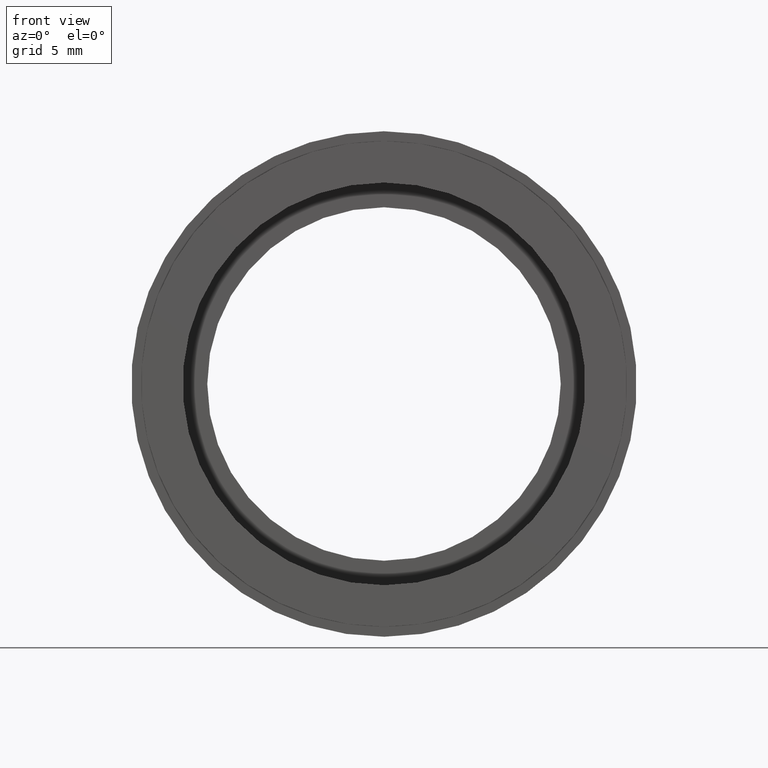
[diagram: clean part render]
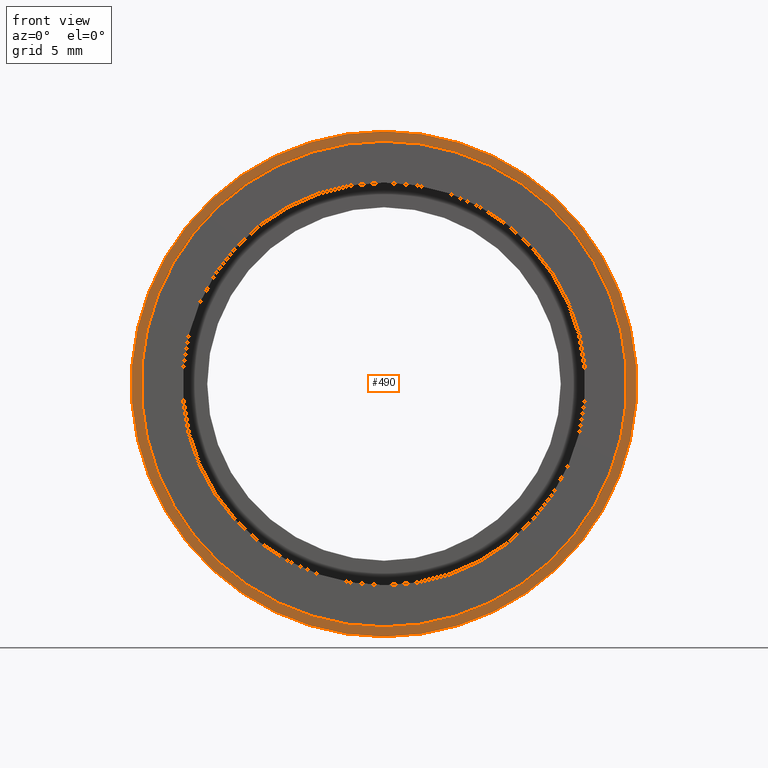
[diagram: same view with one face highlighted and labeled with its STEP entity id]
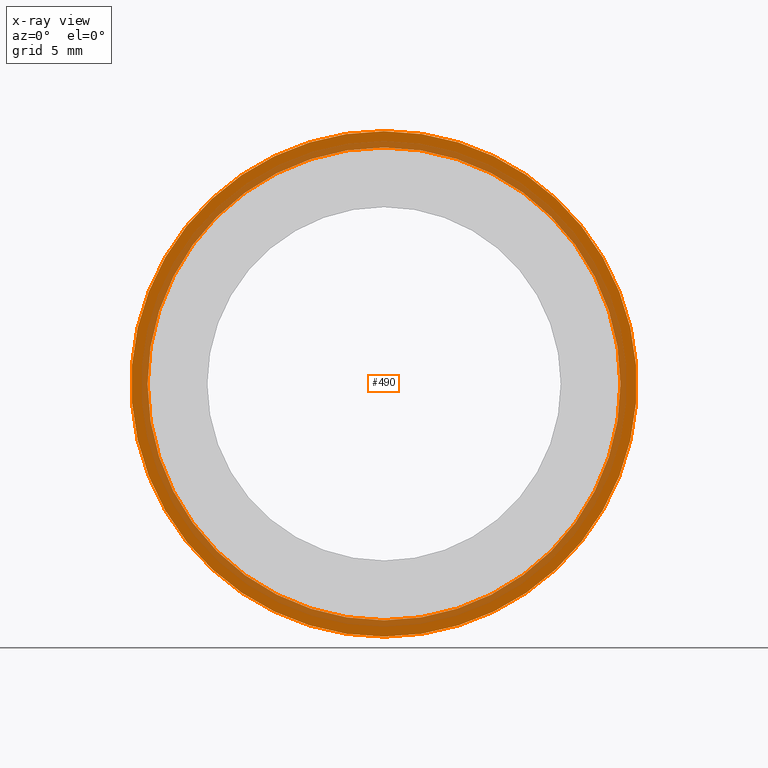
[diagram: x-ray of the same camera — body ghosted, the highlighted face saturated]
A machine part, front view. The second image highlights one B-rep face of the part: STEP entity #490.
The next image is the same camera in x-ray: the body ghosted, the highlighted face saturated — about 38% of this face is hidden behind the body in this view.
In plain terms, the highlighted planar face has unit normal (-0, 1, 0).
Its self-contained STEP definition (entity closure, byte-faithful):
#5 = CARTESIAN_POINT ( 'NONE',  ( 0.0000000000000000000, 5.000000000000000900, 15.87500000000000000 ) ) ;
#14 = CARTESIAN_POINT ( 'NONE',  ( 0.0000000000000000000, 5.000000000000000900, 0.0000000000000000000 ) ) ;
#20 = AXIS2_PLACEMENT_3D ( 'NONE', #531, #187, #331 ) ;
#21 = CARTESIAN_POINT ( 'NONE',  ( 0.0000000000000000000, 5.000000000000000900, 0.0000000000000000000 ) ) ;
#30 = EDGE_CURVE ( 'NONE', #263, #418, #401, .T. ) ;
#50 = VERTEX_POINT ( 'NONE', #5 ) ;
#79 = AXIS2_PLACEMENT_3D ( 'NONE', #14, #394, #178 ) ;
#95 = EDGE_CURVE ( 'NONE', #418, #263, #127, .T. ) ;
#115 = FACE_BOUND ( 'NONE', #275, .T. ) ;
#127 = CIRCLE ( 'NONE', #79, 14.85000000000000100 ) ;
#178 = DIRECTION ( 'NONE',  ( 0.0000000000000000000, 0.0000000000000000000, 1.000000000000000000 ) ) ;
#184 = AXIS2_PLACEMENT_3D ( 'NONE', #21, #458, #353 ) ;
#187 = DIRECTION ( 'NONE',  ( -0.0000000000000000000, 1.000000000000000000, -0.0000000000000000000 ) ) ;
#203 = EDGE_CURVE ( 'NONE', #214, #50, #390, .T. ) ;
#211 = ORIENTED_EDGE ( 'NONE', *, *, #30, .T. ) ;
#214 = VERTEX_POINT ( 'NONE', #310 ) ;
#241 = CARTESIAN_POINT ( 'NONE',  ( 1.818600496733819900E-015, 5.000000000000000900, -14.85000000000000100 ) ) ;
#262 = ORIENTED_EDGE ( 'NONE', *, *, #203, .F. ) ;
#263 = VERTEX_POINT ( 'NONE', #399 ) ;
#273 = PLANE ( 'NONE',  #309 ) ;
#275 = EDGE_LOOP ( 'NONE', ( #211, #559 ) ) ;
#309 = AXIS2_PLACEMENT_3D ( 'NONE', #375, #591, #324 ) ;
#310 = CARTESIAN_POINT ( 'NONE',  ( 1.944126793646423200E-015, 5.000000000000000900, -15.87500000000000000 ) ) ;
#322 = EDGE_CURVE ( 'NONE', #50, #214, #481, .T. ) ;
#324 = DIRECTION ( 'NONE',  ( 0.0000000000000000000, 0.0000000000000000000, 1.000000000000000000 ) ) ;
#331 = DIRECTION ( 'NONE',  ( 0.0000000000000000000, 0.0000000000000000000, 1.000000000000000000 ) ) ;
#353 = DIRECTION ( 'NONE',  ( 0.0000000000000000000, 0.0000000000000000000, 1.000000000000000000 ) ) ;
#375 = CARTESIAN_POINT ( 'NONE',  ( 15.87500000000000000, 5.000000000000000000, 0.0000000000000000000 ) ) ;
#386 = FACE_OUTER_BOUND ( 'NONE', #409, .T. ) ;
#390 = CIRCLE ( 'NONE', #184, 15.87500000000000000 ) ;
#394 = DIRECTION ( 'NONE',  ( -0.0000000000000000000, 1.000000000000000000, -0.0000000000000000000 ) ) ;
#399 = CARTESIAN_POINT ( 'NONE',  ( 0.0000000000000000000, 5.000000000000000900, 14.85000000000000100 ) ) ;
#401 = CIRCLE ( 'NONE', #412, 14.85000000000000100 ) ;
#409 = EDGE_LOOP ( 'NONE', ( #526, #262 ) ) ;
#412 = AXIS2_PLACEMENT_3D ( 'NONE', #442, #580, #504 ) ;
#418 = VERTEX_POINT ( 'NONE', #241 ) ;
#442 = CARTESIAN_POINT ( 'NONE',  ( 0.0000000000000000000, 5.000000000000000900, 0.0000000000000000000 ) ) ;
#458 = DIRECTION ( 'NONE',  ( -0.0000000000000000000, 1.000000000000000000, -0.0000000000000000000 ) ) ;
#481 = CIRCLE ( 'NONE', #20, 15.87500000000000000 ) ;
#490 = ADVANCED_FACE ( 'NONE', ( #386, #115 ), #273, .F. ) ;
#504 = DIRECTION ( 'NONE',  ( 0.0000000000000000000, 0.0000000000000000000, 1.000000000000000000 ) ) ;
#526 = ORIENTED_EDGE ( 'NONE', *, *, #322, .F. ) ;
#531 = CARTESIAN_POINT ( 'NONE',  ( 0.0000000000000000000, 5.000000000000000900, 0.0000000000000000000 ) ) ;
#559 = ORIENTED_EDGE ( 'NONE', *, *, #95, .T. ) ;
#580 = DIRECTION ( 'NONE',  ( -0.0000000000000000000, 1.000000000000000000, -0.0000000000000000000 ) ) ;
#591 = DIRECTION ( 'NONE',  ( -0.0000000000000000000, 1.000000000000000000, 0.0000000000000000000 ) ) ;